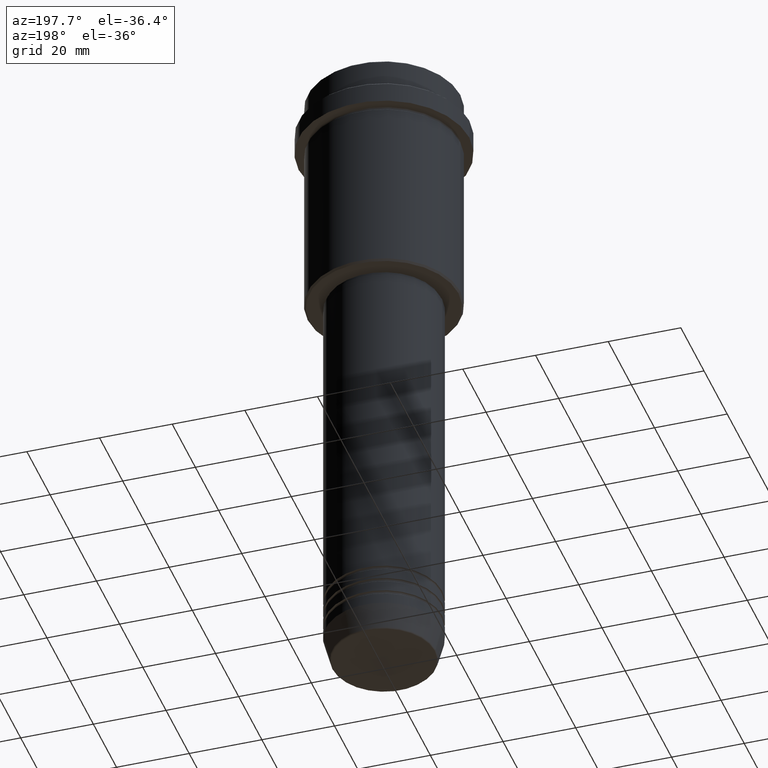
[diagram: clean part render]
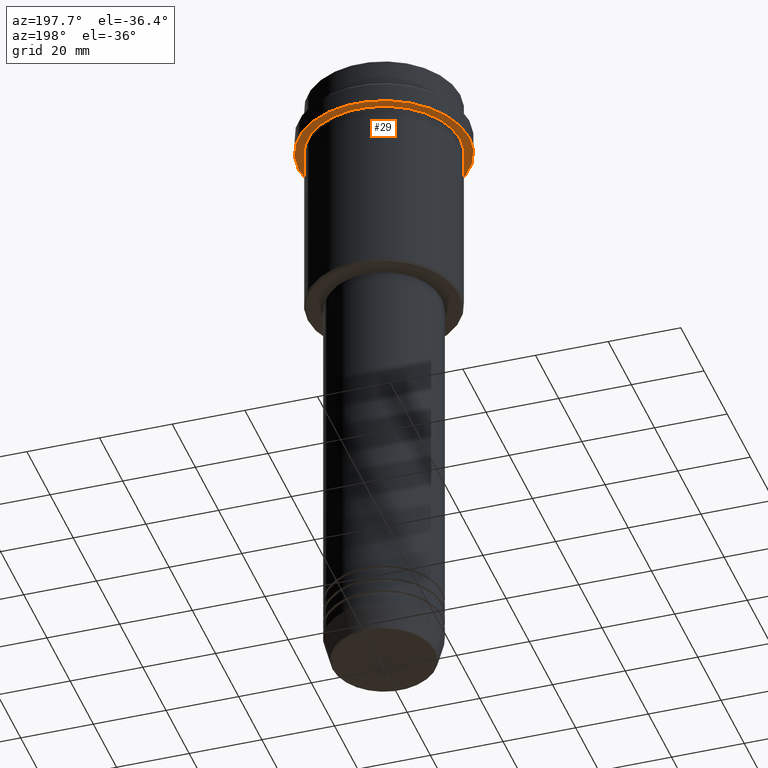
[diagram: same view with one face highlighted and labeled with its STEP entity id]
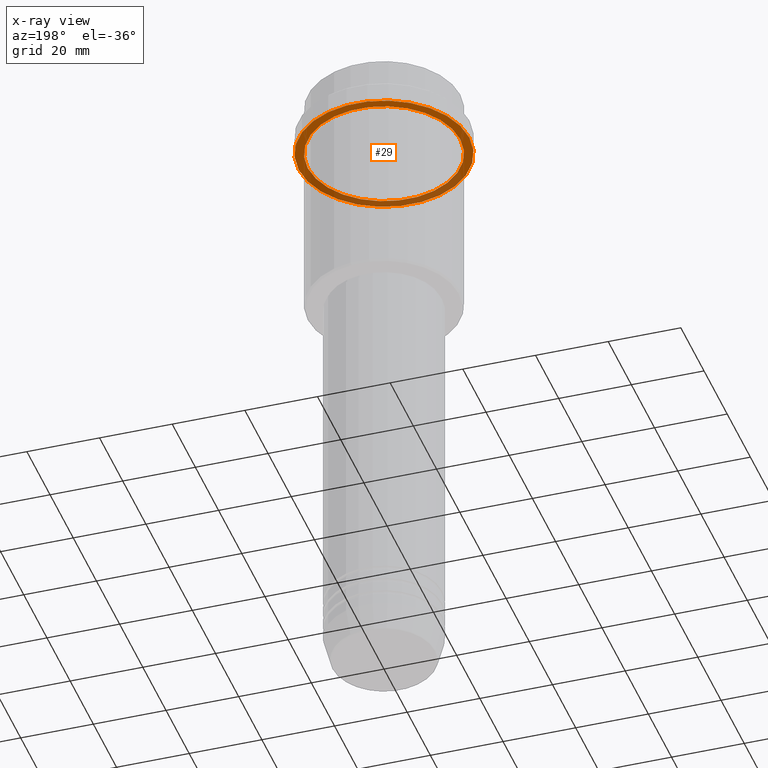
[diagram: x-ray of the same camera — body ghosted, the highlighted face saturated]
A machine part, auxiliary view. The second image highlights one B-rep face of the part: STEP entity #29.
The next image is the same camera in x-ray: the body ghosted, the highlighted face saturated — about 36% of this face is hidden behind the body in this view.
In plain terms, the highlighted planar face has unit normal (0, 0, -1).
Its self-contained STEP definition (entity closure, byte-faithful):
#19 = CIRCLE ( 'NONE', #1360, 23.50000000000000355 ) ;
#29 = ADVANCED_FACE ( 'NONE', ( #1253, #934 ), #1359, .T. ) ;
#112 = DIRECTION ( 'NONE',  ( 1.000000000000000000, 0.000000000000000000, 0.000000000000000000 ) ) ;
#120 = CARTESIAN_POINT ( 'NONE',  ( 0.000000000000000000, 0.000000000000000000, -15.00000000000000178 ) ) ;
#167 = ORIENTED_EDGE ( 'NONE', *, *, #172, .F. ) ;
#172 = EDGE_CURVE ( 'NONE', #231, #354, #914, .T. ) ;
#182 = CARTESIAN_POINT ( 'NONE',  ( -20.99999999999999289, 0.000000000000000000, -15.00000000000000178 ) ) ;
#220 = AXIS2_PLACEMENT_3D ( 'NONE', #120, #786, #1340 ) ;
#231 = VERTEX_POINT ( 'NONE', #469 ) ;
#269 = DIRECTION ( 'NONE',  ( -1.000000000000000000, 0.000000000000000000, 0.000000000000000000 ) ) ;
#305 = EDGE_LOOP ( 'NONE', ( #727, #639 ) ) ;
#314 = ORIENTED_EDGE ( 'NONE', *, *, #421, .F. ) ;
#339 = EDGE_CURVE ( 'NONE', #399, #625, #1341, .T. ) ;
#350 = CARTESIAN_POINT ( 'NONE',  ( 23.50000000000000355, 0.000000000000000000, -15.00000000000000000 ) ) ;
#354 = VERTEX_POINT ( 'NONE', #350 ) ;
#399 = VERTEX_POINT ( 'NONE', #182 ) ;
#421 = EDGE_CURVE ( 'NONE', #354, #231, #19, .T. ) ;
#469 = CARTESIAN_POINT ( 'NONE',  ( -23.50000000000000711, 2.877919977996281109E-15, -15.00000000000000000 ) ) ;
#591 = EDGE_LOOP ( 'NONE', ( #314, #167 ) ) ;
#625 = VERTEX_POINT ( 'NONE', #991 ) ;
#639 = ORIENTED_EDGE ( 'NONE', *, *, #1235, .T. ) ;
#692 = AXIS2_PLACEMENT_3D ( 'NONE', #980, #1199, #112 ) ;
#727 = ORIENTED_EDGE ( 'NONE', *, *, #339, .T. ) ;
#756 = AXIS2_PLACEMENT_3D ( 'NONE', #1089, #759, #870 ) ;
#759 = DIRECTION ( 'NONE',  ( 0.000000000000000000, 0.000000000000000000, -1.000000000000000000 ) ) ;
#786 = DIRECTION ( 'NONE',  ( -0.000000000000000000, -0.000000000000000000, 1.000000000000000000 ) ) ;
#828 = DIRECTION ( 'NONE',  ( -0.000000000000000000, -0.000000000000000000, 1.000000000000000000 ) ) ;
#870 = DIRECTION ( 'NONE',  ( -1.000000000000000000, 0.000000000000000000, -0.000000000000000000 ) ) ;
#914 = CIRCLE ( 'NONE', #692, 23.50000000000000355 ) ;
#933 = DIRECTION ( 'NONE',  ( -0.000000000000000000, -0.000000000000000000, 1.000000000000000000 ) ) ;
#934 = FACE_OUTER_BOUND ( 'NONE', #591, .T. ) ;
#980 = CARTESIAN_POINT ( 'NONE',  ( 0.000000000000000000, 0.000000000000000000, -15.00000000000000000 ) ) ;
#991 = CARTESIAN_POINT ( 'NONE',  ( 20.99999999999999289, 2.571758278209440872E-15, -15.00000000000000178 ) ) ;
#1089 = CARTESIAN_POINT ( 'NONE',  ( 0.000000000000000000, 23.50000000000000355, -15.00000000000000178 ) ) ;
#1099 = AXIS2_PLACEMENT_3D ( 'NONE', #1249, #828, #269 ) ;
#1142 = DIRECTION ( 'NONE',  ( 1.000000000000000000, 0.000000000000000000, 0.000000000000000000 ) ) ;
#1163 = CIRCLE ( 'NONE', #1099, 20.99999999999999289 ) ;
#1199 = DIRECTION ( 'NONE',  ( -0.000000000000000000, -0.000000000000000000, 1.000000000000000000 ) ) ;
#1235 = EDGE_CURVE ( 'NONE', #625, #399, #1163, .T. ) ;
#1245 = CARTESIAN_POINT ( 'NONE',  ( 0.000000000000000000, 0.000000000000000000, -15.00000000000000000 ) ) ;
#1249 = CARTESIAN_POINT ( 'NONE',  ( 0.000000000000000000, 0.000000000000000000, -15.00000000000000178 ) ) ;
#1253 = FACE_BOUND ( 'NONE', #305, .T. ) ;
#1340 = DIRECTION ( 'NONE',  ( -1.000000000000000000, 0.000000000000000000, 0.000000000000000000 ) ) ;
#1341 = CIRCLE ( 'NONE', #220, 20.99999999999999289 ) ;
#1359 = PLANE ( 'NONE',  #756 ) ;
#1360 = AXIS2_PLACEMENT_3D ( 'NONE', #1245, #933, #1142 ) ;